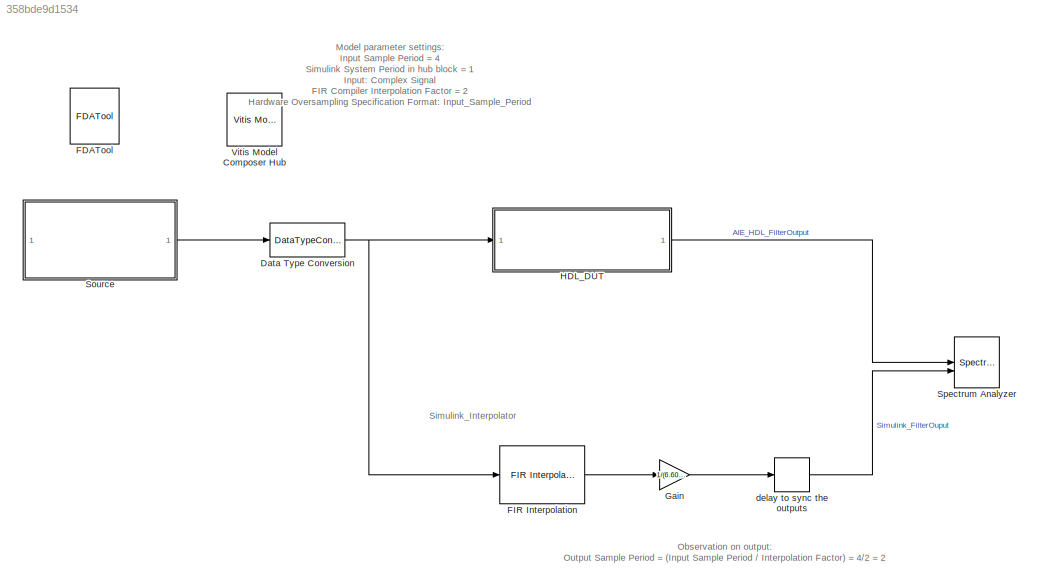
MODEL slx_358bde9d1534
KIND model
CONFIG AbsTol = auto
CONFIG EnableMultiTasking = off
CONFIG FixedStep = auto
CONFIG MaxStep = auto
CONFIG MinStep = auto
CONFIG RelTol = 1e-3
CONFIG SampleTimeConstraint = Unconstrained
CONFIG SolverName = VariableStepAuto
CONFIG StartTime = 0.0
CONFIG StopTime = 1000
BLOCK [DataTypeConversion] Data Type Conversion
  OutDataTypeStr = int16
  RndMeth = Floor
  SaturateOnIntegerOverflow = off
BLOCK [Reference] FDATool  REF=hdlUtilities/FDATool
  SourceBlock = hdlUtilities/FDATool
  SourceType = Xilinx FDATool Interface Block
  UserDataPersistent = on
BLOCK [Reference] FIR Interpolation  REF=dspmlti4/FIR
Interpolation
  SourceBlock = dspmlti4/FIR\nInterpolation
  SourceType = FIR Interpolation
  UserDataPersistent = on
BLOCK [Gain] Gain
  Gain = 1/(6.6045e+04)
  OutDataTypeStr = int16
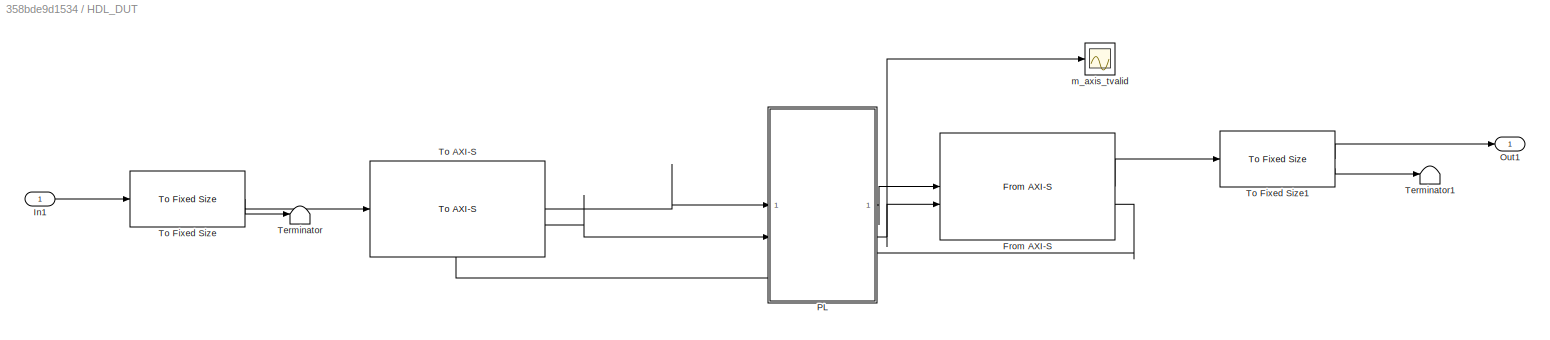
BLOCK [SubSystem] HDL_DUT
BLOCK [Reference] HDL_DUT/From AXI-S  REF=aieUtilities/From AXI-S
  SourceBlock = aieUtilities/From AXI-S
  SourceType = From AXI-S
BLOCK [Inport] HDL_DUT/In1
BLOCK [Outport] HDL_DUT/Out1
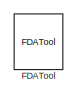
[diagram: HDL_DUT/PL - part 1/4, top left region]
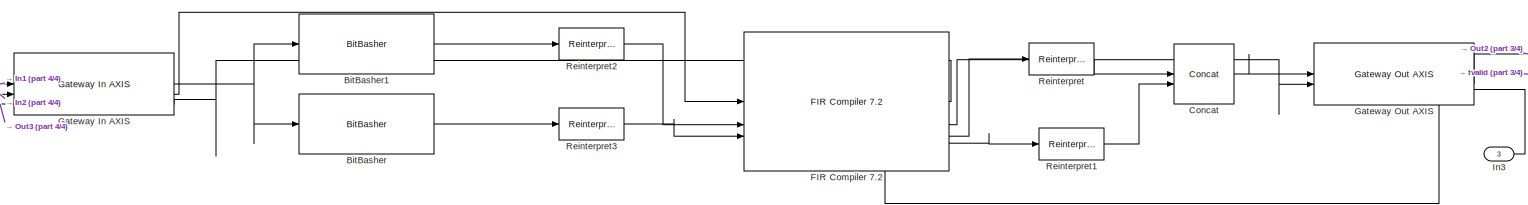
[diagram: HDL_DUT/PL - part 2/4, full width, bottom band]
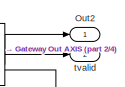
[diagram: HDL_DUT/PL - part 3/4, middle right region]
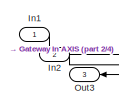
[diagram: HDL_DUT/PL - part 4/4, bottom left region]
BLOCK [SubSystem] HDL_DUT/PL
  PortSchema = {"entries":[{"content":{"sides":[{"content":{"connectorIds":["In1","In2","Out3"]},"type":"ConnectorPlacement.EquallySpacedRectSide","uuid":"b9240e68-8c33-49ba-b00e-74953cef8815"},{"content":{"connectorIds":["Out1","Out2","In3"],"side":"RIGHT"},"type":"ConnectorPlacement.EquallySpacedRectSide","uuid":"ae9f69ab-13df-4ed6-8e03-b2ffeca92de6"},{"content":{"side":"TOP"},"type":"ConnectorPlacement.Equall...<+248ch>
BLOCK [Reference] HDL_DUT/PL/BitBasher  REF=hdlBasic/BitBasher
  SourceBlock = hdlBasic/BitBasher
  SourceType = BitBasher Block
BLOCK [Reference] HDL_DUT/PL/BitBasher1  REF=hdlBasic/BitBasher
  SourceBlock = hdlBasic/BitBasher
  SourceType = BitBasher Block
BLOCK [Reference] HDL_DUT/PL/Concat  REF=hdlBasic/Concat
  SourceBlock = hdlBasic/Concat
  SourceType = Bus Concatenator Block
BLOCK [Reference] HDL_DUT/PL/FDATool  REF=hdlUtilities/FDATool
  SourceBlock = hdlUtilities/FDATool
  SourceType = Xilinx FDATool Interface Block
  UserDataPersistent = on
BLOCK [Reference] HDL_DUT/PL/FIR Compiler 7.2  REF=hdlDSPIP/FIR Compiler 7.2 
  SourceBlock = hdlDSPIP/FIR Compiler 7.2
  SourceType = FIR Compiler 7.2 Block
BLOCK [Reference] HDL_DUT/PL/Gateway In AXIS  REF=hdlUtilities/Gateway In AXIS
  SourceBlock = hdlUtilities/Gateway In AXIS
  SourceType = Gateway In AXIS
BLOCK [Reference] HDL_DUT/PL/Gateway Out AXIS  REF=hdlUtilities/Gateway Out AXIS
  SourceBlock = hdlUtilities/Gateway Out AXIS
  SourceType = Gateway Out AXIS
BLOCK [Inport] HDL_DUT/PL/In1
BLOCK [Inport] HDL_DUT/PL/In2
  Port = 2
BLOCK [Inport] HDL_DUT/PL/In3
  Port = 3
BLOCK [Outport] HDL_DUT/PL/Out2
BLOCK [Outport] HDL_DUT/PL/Out3
  Port = 3
BLOCK [Reference] HDL_DUT/PL/Reinterpret  REF=hdlBasic/Reinterpret
  SourceBlock = hdlBasic/Reinterpret
  SourceType = Type Reinterpreter Block
BLOCK [Reference] HDL_DUT/PL/Reinterpret1  REF=hdlBasic/Reinterpret
  SourceBlock = hdlBasic/Reinterpret
  SourceType = Type Reinterpreter Block
BLOCK [Reference] HDL_DUT/PL/Reinterpret2  REF=hdlBasic/Reinterpret
  SourceBlock = hdlBasic/Reinterpret
  SourceType = Type Reinterpreter Block
BLOCK [Reference] HDL_DUT/PL/Reinterpret3  REF=hdlBasic/Reinterpret
  SourceBlock = hdlBasic/Reinterpret
  SourceType = Type Reinterpreter Block
BLOCK [Outport] HDL_DUT/PL/tvalid
  Port = 2
BLOCK [Terminator] HDL_DUT/Terminator
BLOCK [Terminator] HDL_DUT/Terminator1
BLOCK [Reference] HDL_DUT/To AXI-S  REF=aieUtilities/To AXI-S
  SourceBlock = aieUtilities/To AXI-S
  SourceType = To AXI-S
BLOCK [Reference] HDL_DUT/To Fixed Size  REF=aieUtilities/To Fixed Size
  SourceBlock = aieUtilities/To Fixed Size
  SourceType = To Fixed Size
BLOCK [Reference] HDL_DUT/To Fixed Size1  REF=aieUtilities/To Fixed Size
  SourceBlock = aieUtilities/To Fixed Size
  SourceType = To Fixed Size
BLOCK [Scope] HDL_DUT/m_axis_tvalid
  Floating = off
  NumInputPorts = 1
  ScopeSpecificationString = Simulink.scopes.TimeScopeBlockCfg('CurrentConfiguration', extmgr.ConfigurationSet(extmgr.Configuration('Core','General UI',true,'DisplayFullSourceName',false,'ShowMainToolbar',true),extmgr.Configuration('Sources','WiredSimulink',true,'DataLogging',false,'DataLoggingVariableName','ScopeData1','DataLoggingLimitDataPoints',false,'DataLoggingMaxPoints','5000','DataLoggingDecimateData',false,'DataLoggi...<+2017ch>
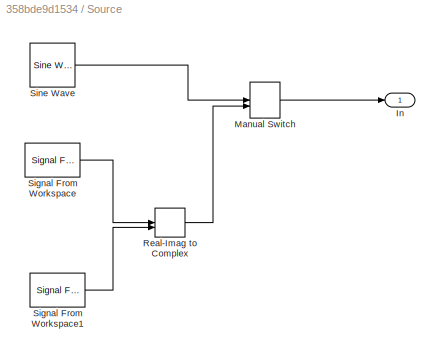
BLOCK [SubSystem] Source
BLOCK [Outport] Source/In
BLOCK [ManualSwitch] Source/Manual Switch
  CurrentSetting = 0
BLOCK [RealImagToComplex] Source/Real-Imag to Complex
BLOCK [Reference] Source/Signal From Workspace  REF=dspsrcs4/Signal From
Workspace
  SourceBlock = dspsrcs4/Signal From\nWorkspace
  SourceType = Signal From Workspace
BLOCK [Reference] Source/Signal From Workspace1  REF=dspsrcs4/Signal From
Workspace
  SourceBlock = dspsrcs4/Signal From\nWorkspace
  SourceType = Signal From Workspace
BLOCK [Reference] Source/Sine Wave  REF=dspsrcs4/Sine Wave
  SourceBlock = dspsrcs4/Sine Wave
  SourceType = Sine Wave
BLOCK [SpectrumAnalyzer] Spectrum Analyzer
  AllowFFTLengthLessThanSamplesPerUpdate = on
  AveragingMethod = Exponential
  ChannelNames = [""]
  DefaultConfigurationName = spbscopes.SpectrumAnalyzerBlockCfg
  NumInputPorts = 2
  ScopeSpecificationString = spbscopes.SpectrumAnalyzerBlockCfg('CurrentConfiguration', extmgr.ConfigurationSet(extmgr.Configuration('Core','General UI',true,'FigureColor',[0.12941     0.12941     0.12941]),extmgr.Configuration('Visuals','Spectrum',true,'Title','','YLabel','','MinYLim','0.3903','MaxYLim','96.8759','Legend',true,'AxesProperties',struct('XGrid',{'on','on'},'YGrid',{'on','on'},'ZGrid',{'on','on'},'Color',{[0.070...<+2470ch>
  ShowLegend = on
  WasSavedAsWebScope = on
BLOCK [Reference] Vitis Model Composer Hub  REF=vmcUtilities/Vitis Model Composer Hub
  SourceBlock = vmcUtilities/Vitis Model Composer Hub
  SourceType = VMC Hub
  Tag = genX
  UserDataPersistent = on
BLOCK [Delay] delay to sync the outputs
  DelayLength = 67
  InputPortMap = u0
ANNOTATION (root): Model parameter settings: Input Sample Period = 4 Simulink System Period in hub block = 1 Input: Complex Signal FIR Compiler Interpolation Factor = 2 Hardware Oversampling Specification Format: Input_Sample_Period
ANNOTATION (root): Observation on output: Output Sample Period = (Input Sample Period / Interpolation Factor) = 4/2 = 2
ANNOTATION (root): Simulink_Interpolator
NET Data Type Conversion:1 -> FIR Interpolation:1, HDL_DUT:1
LINE FIR Interpolation:1 -> Gain:1
LINE Gain:1 -> delay to sync the outputs:1
LINE HDL_DUT/From AXI-S:1 -> HDL_DUT/To Fixed Size1:1
LINE HDL_DUT/From AXI-S:2 -> HDL_DUT/PL:3
LINE HDL_DUT/In1:1 -> HDL_DUT/To Fixed Size:1
LINE HDL_DUT/PL/BitBasher1:1 -> HDL_DUT/PL/Reinterpret2:1
LINE HDL_DUT/PL/BitBasher:1 -> HDL_DUT/PL/Reinterpret3:1
LINE HDL_DUT/PL/Concat:1 -> HDL_DUT/PL/Gateway Out AXIS:1
LINE HDL_DUT/PL/FIR Compiler 7.2:1 -> HDL_DUT/PL/Gateway In AXIS:3
LINE HDL_DUT/PL/FIR Compiler 7.2:2 -> HDL_DUT/PL/Gateway Out AXIS:2
LINE HDL_DUT/PL/FIR Compiler 7.2:3 -> HDL_DUT/PL/Reinterpret:1
LINE HDL_DUT/PL/FIR Compiler 7.2:4 -> HDL_DUT/PL/Reinterpret1:1
NET HDL_DUT/PL/Gateway In AXIS:1 -> HDL_DUT/PL/BitBasher1:1, HDL_DUT/PL/BitBasher:1
LINE HDL_DUT/PL/Gateway In AXIS:2 -> HDL_DUT/PL/FIR Compiler 7.2:1
LINE HDL_DUT/PL/Gateway In AXIS:3 -> HDL_DUT/PL/Out3:1
LINE HDL_DUT/PL/Gateway Out AXIS:1 -> HDL_DUT/PL/Out2:1
LINE HDL_DUT/PL/Gateway Out AXIS:2 -> HDL_DUT/PL/tvalid:1
LINE HDL_DUT/PL/Gateway Out AXIS:3 -> HDL_DUT/PL/FIR Compiler 7.2:4
LINE HDL_DUT/PL/In1:1 -> HDL_DUT/PL/Gateway In AXIS:1
LINE HDL_DUT/PL/In2:1 -> HDL_DUT/PL/Gateway In AXIS:2
LINE HDL_DUT/PL/In3:1 -> HDL_DUT/PL/Gateway Out AXIS:3
LINE HDL_DUT/PL/Reinterpret1:1 -> HDL_DUT/PL/Concat:2
LINE HDL_DUT/PL/Reinterpret2:1 -> HDL_DUT/PL/FIR Compiler 7.2:2
LINE HDL_DUT/PL/Reinterpret3:1 -> HDL_DUT/PL/FIR Compiler 7.2:3
LINE HDL_DUT/PL/Reinterpret:1 -> HDL_DUT/PL/Concat:1
LINE HDL_DUT/PL:1 -> HDL_DUT/From AXI-S:1
NET HDL_DUT/PL:2 -> HDL_DUT/From AXI-S:2, HDL_DUT/m_axis_tvalid:1
LINE HDL_DUT/PL:3 -> HDL_DUT/To AXI-S:2
LINE HDL_DUT/To AXI-S:1 -> HDL_DUT/PL:1
LINE HDL_DUT/To AXI-S:2 -> HDL_DUT/PL:2
LINE HDL_DUT/To Fixed Size1:1 -> HDL_DUT/Out1:1
LINE HDL_DUT/To Fixed Size1:2 -> HDL_DUT/Terminator1:1
LINE HDL_DUT/To Fixed Size:1 -> HDL_DUT/To AXI-S:1
LINE HDL_DUT/To Fixed Size:2 -> HDL_DUT/Terminator:1
LINE HDL_DUT:1 -> Spectrum Analyzer:1
LINE Source/Manual Switch:1 -> Source/In:1
LINE Source/Real-Imag to Complex:1 -> Source/Manual Switch:2
LINE Source/Signal From Workspace1:1 -> Source/Real-Imag to Complex:2
LINE Source/Signal From Workspace:1 -> Source/Real-Imag to Complex:1
LINE Source/Sine Wave:1 -> Source/Manual Switch:1
LINE Source:1 -> Data Type Conversion:1
LINE delay to sync the outputs:1 -> Spectrum Analyzer:2
note: NET lines group one-source signal fan-out (src -> all destinations, sorted); 1:1 wires keep LINE
